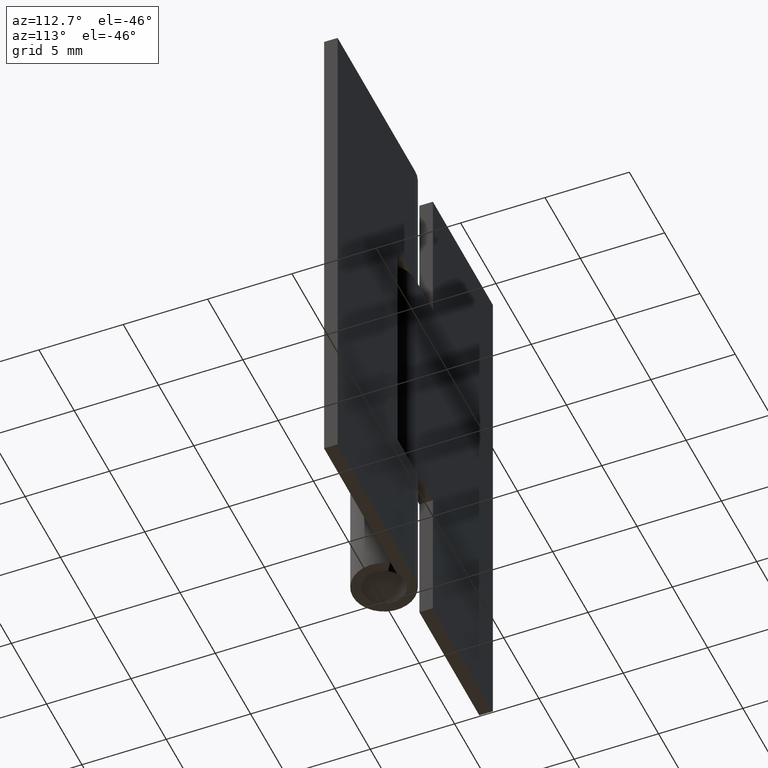
[diagram: clean part render]
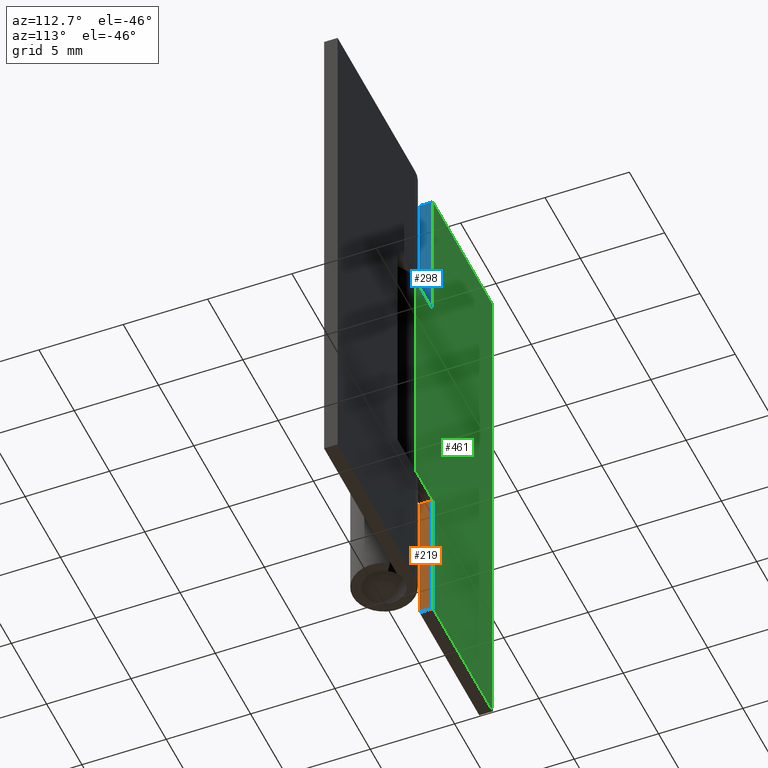
[diagram: same view with three faces highlighted in distinct colors, each labeled with its STEP entity id]
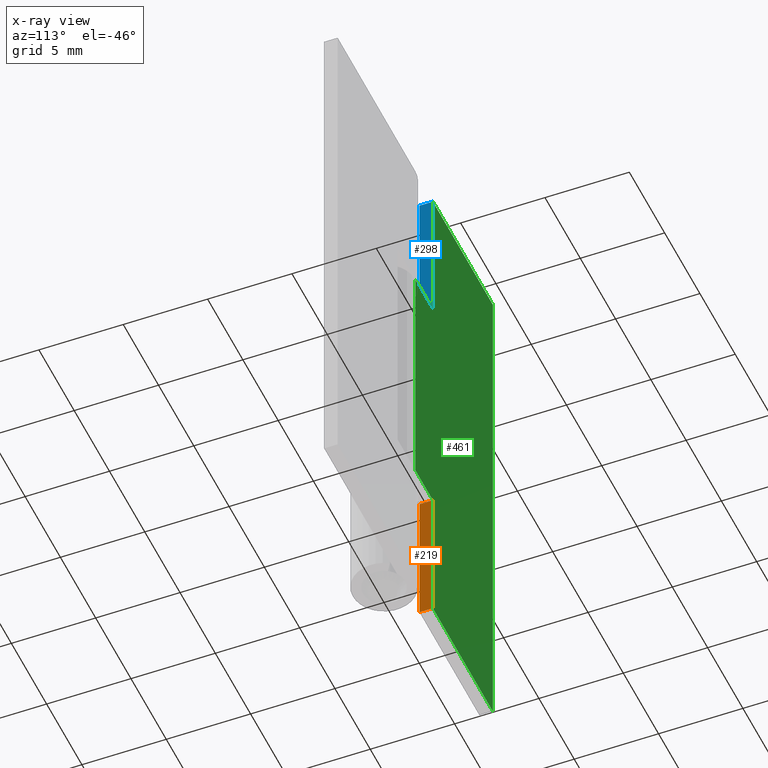
[diagram: x-ray of the same camera — body ghosted, the three highlighted faces saturated]
A machine part, auxiliary view with three faces highlighted in distinct colors.
The next image is the same camera in x-ray (body ghosted, the three faces saturated) — at least one of them is partly hidden behind the body in this view.
Their STEP definitions:

[orange] entity #219 — the highlighted face is a freeform B-spline surface patch.
#143=CARTESIAN_POINT('',(-2.500000000000000,1.049998000000000,0.0));
#144=VERTEX_POINT('',#143);
#150=CARTESIAN_POINT('',(-2.500000000000000,1.049998000000052,8.500000000000000));
#151=VERTEX_POINT('',#150);
#152=CARTESIAN_POINT('',(-2.500000000000000,1.049998000000000,0.0));
#153=CARTESIAN_POINT('',(-2.500000000000000,1.049998000000052,8.500000000000000));
#154=QUASI_UNIFORM_CURVE('',1,(#152,#153),.UNSPECIFIED.,.F.,.U.);
#155=EDGE_CURVE('',#144,#151,#154,.T.);
#192=CARTESIAN_POINT('',(-2.500000000000000,1.010038001550557,-0.424574983525351));
#193=CARTESIAN_POINT('',(-2.500000000000000,1.010038001550557,8.924575211513115));
#194=CARTESIAN_POINT('',(-2.500000000000000,1.889958019907081,-0.424574983525351));
#195=CARTESIAN_POINT('',(-2.500000000000000,1.889958019907081,8.924575211513115));
#196=B_SPLINE_SURFACE_WITH_KNOTS('',1,1,((#192,#194),(#193,#195)),.UNSPECIFIED.,.F.,.F.,.U.,(2,2),(2,2),(0.0,9.349150195038465),(0.041708334948495,0.958291687403247),.UNSPECIFIED.);
#197=CARTESIAN_POINT('',(-2.500000000000000,1.849997999999965,7.105427E-015));
#198=VERTEX_POINT('',#197);
#199=CARTESIAN_POINT('',(-2.500000000000000,1.049998000000000,0.0));
#200=CARTESIAN_POINT('',(-2.500000000000000,1.849997999999965,7.105427E-015));
#201=QUASI_UNIFORM_CURVE('',1,(#199,#200),.UNSPECIFIED.,.F.,.U.);
#202=EDGE_CURVE('',#144,#198,#201,.T.);
#203=ORIENTED_EDGE('',*,*,#202,.T.);
#204=CARTESIAN_POINT('',(-2.500000000000000,1.849997999999965,8.500000000000000));
#205=VERTEX_POINT('',#204);
#206=CARTESIAN_POINT('',(-2.500000000000000,1.849997999999965,7.105427E-015));
#207=CARTESIAN_POINT('',(-2.500000000000000,1.849997999999965,8.500000000000000));
#208=QUASI_UNIFORM_CURVE('',1,(#206,#207),.UNSPECIFIED.,.F.,.U.);
#209=EDGE_CURVE('',#198,#205,#208,.T.);
#210=ORIENTED_EDGE('',*,*,#209,.T.);
#211=CARTESIAN_POINT('',(-2.500000000000000,1.049998000000052,8.500000000000000));
#212=CARTESIAN_POINT('',(-2.500000000000000,1.849997999999965,8.500000000000000));
#213=QUASI_UNIFORM_CURVE('',1,(#211,#212),.UNSPECIFIED.,.F.,.U.);
#214=EDGE_CURVE('',#151,#205,#213,.T.);
#215=ORIENTED_EDGE('',*,*,#214,.F.);
#216=ORIENTED_EDGE('',*,*,#155,.F.);
#217=EDGE_LOOP('',(#203,#210,#215,#216));
#218=FACE_OUTER_BOUND('',#217,.T.);
#219=ADVANCED_FACE('',(#218),#196,.F.);

[blue] entity #298 — the highlighted face is a freeform B-spline surface patch.
#163=CARTESIAN_POINT('',(-2.500000000000000,1.049998000000052,23.500000000000000));
#164=VERTEX_POINT('',#163);
#170=CARTESIAN_POINT('',(-2.500000000000000,1.049998499999982,32.0));
#171=VERTEX_POINT('',#170);
#172=CARTESIAN_POINT('',(-2.500000000000000,1.049998499999982,32.0));
#173=CARTESIAN_POINT('',(-2.500000000000000,1.049998000000052,23.500000000000000));
#174=QUASI_UNIFORM_CURVE('',1,(#172,#173),.UNSPECIFIED.,.F.,.U.);
#175=EDGE_CURVE('',#171,#164,#174,.T.);
#271=CARTESIAN_POINT('',(-2.500000000000000,1.010038001550610,32.424574983525353));
#272=CARTESIAN_POINT('',(-2.500000000000000,1.010038001550610,23.075424788486881));
#273=CARTESIAN_POINT('',(-2.500000000000000,1.889958019907114,32.424574983525353));
#274=CARTESIAN_POINT('',(-2.500000000000000,1.889958019907114,23.075424788486881));
#275=B_SPLINE_SURFACE_WITH_KNOTS('',1,1,((#271,#273),(#272,#274)),.UNSPECIFIED.,.F.,.F.,.U.,(2,2),(2,2),(0.0,9.349150195038476),(0.041708334948495,0.958291687403247),.UNSPECIFIED.);
#276=ORIENTED_EDGE('',*,*,#175,.T.);
#277=CARTESIAN_POINT('',(-2.500000000000000,1.849997999999965,23.500000000000000));
#278=VERTEX_POINT('',#277);
#279=CARTESIAN_POINT('',(-2.500000000000000,1.049998000000052,23.500000000000000));
#280=CARTESIAN_POINT('',(-2.500000000000000,1.849997999999965,23.500000000000000));
#281=QUASI_UNIFORM_CURVE('',1,(#279,#280),.UNSPECIFIED.,.F.,.U.);
#282=EDGE_CURVE('',#164,#278,#281,.T.);
#283=ORIENTED_EDGE('',*,*,#282,.T.);
#284=CARTESIAN_POINT('',(-2.500000000000000,1.849998000000000,32.0));
#285=VERTEX_POINT('',#284);
#286=CARTESIAN_POINT('',(-2.500000000000000,1.849998000000000,32.0));
#287=CARTESIAN_POINT('',(-2.500000000000000,1.849997999999965,23.500000000000000));
#288=QUASI_UNIFORM_CURVE('',1,(#286,#287),.UNSPECIFIED.,.F.,.U.);
#289=EDGE_CURVE('',#285,#278,#288,.T.);
#290=ORIENTED_EDGE('',*,*,#289,.F.);
#291=CARTESIAN_POINT('',(-2.500000000000000,1.049998499999982,32.0));
#292=CARTESIAN_POINT('',(-2.500000000000000,1.849998000000000,32.0));
#293=QUASI_UNIFORM_CURVE('',1,(#291,#292),.UNSPECIFIED.,.F.,.U.);
#294=EDGE_CURVE('',#171,#285,#293,.T.);
#295=ORIENTED_EDGE('',*,*,#294,.F.);
#296=EDGE_LOOP('',(#276,#283,#290,#295));
#297=FACE_OUTER_BOUND('',#296,.T.);
#298=ADVANCED_FACE('',(#297),#275,.T.);

[green] entity #461 — the highlighted face is a freeform B-spline surface patch.
#197=CARTESIAN_POINT('',(-2.500000000000000,1.849997999999965,7.105427E-015));
#198=VERTEX_POINT('',#197);
#204=CARTESIAN_POINT('',(-2.500000000000000,1.849997999999965,8.500000000000000));
#205=VERTEX_POINT('',#204);
#206=CARTESIAN_POINT('',(-2.500000000000000,1.849997999999965,7.105427E-015));
#207=CARTESIAN_POINT('',(-2.500000000000000,1.849997999999965,8.500000000000000));
#208=QUASI_UNIFORM_CURVE('',1,(#206,#207),.UNSPECIFIED.,.F.,.U.);
#209=EDGE_CURVE('',#198,#205,#208,.T.);
#226=CARTESIAN_POINT('',(0.002720293357384,1.849998000000000,8.500000000000000));
#227=VERTEX_POINT('',#226);
#228=CARTESIAN_POINT('',(-2.500000000000000,1.849997999999965,8.500000000000000));
#229=CARTESIAN_POINT('',(0.002720293357384,1.849998000000000,8.500000000000000));
#230=QUASI_UNIFORM_CURVE('',1,(#228,#229),.UNSPECIFIED.,.F.,.U.);
#231=EDGE_CURVE('',#205,#227,#230,.T.);
#277=CARTESIAN_POINT('',(-2.500000000000000,1.849997999999965,23.500000000000000));
#278=VERTEX_POINT('',#277);
#284=CARTESIAN_POINT('',(-2.500000000000000,1.849998000000000,32.0));
#285=VERTEX_POINT('',#284);
#286=CARTESIAN_POINT('',(-2.500000000000000,1.849998000000000,32.0));
#287=CARTESIAN_POINT('',(-2.500000000000000,1.849997999999965,23.500000000000000));
#288=QUASI_UNIFORM_CURVE('',1,(#286,#287),.UNSPECIFIED.,.F.,.U.);
#289=EDGE_CURVE('',#285,#278,#288,.T.);
#307=CARTESIAN_POINT('',(0.002720293357384,1.849997999999965,23.500000000000000));
#308=VERTEX_POINT('',#307);
#344=CARTESIAN_POINT('',(-2.500000000000000,1.849997999999965,23.500000000000000));
#345=CARTESIAN_POINT('',(0.002720293357384,1.849997999999965,23.500000000000000));
#346=QUASI_UNIFORM_CURVE('',1,(#344,#345),.UNSPECIFIED.,.F.,.U.);
#347=EDGE_CURVE('',#278,#308,#346,.T.);
#360=CARTESIAN_POINT('',(-11.0,1.849998000000000,0.0));
#361=VERTEX_POINT('',#360);
#367=CARTESIAN_POINT('',(-2.500000000000000,1.849997999999965,7.105427E-015));
#368=CARTESIAN_POINT('',(-11.0,1.849998000000000,0.0));
#369=QUASI_UNIFORM_CURVE('',1,(#367,#368),.UNSPECIFIED.,.F.,.U.);
#370=EDGE_CURVE('',#198,#361,#369,.T.);
#382=CARTESIAN_POINT('',(-11.0,1.849998000000000,32.0));
#383=VERTEX_POINT('',#382);
#389=CARTESIAN_POINT('',(-11.0,1.849998000000000,32.0));
#390=CARTESIAN_POINT('',(-11.0,1.849998000000000,0.0));
#391=QUASI_UNIFORM_CURVE('',1,(#389,#390),.UNSPECIFIED.,.F.,.U.);
#392=EDGE_CURVE('',#383,#361,#391,.T.);
#403=CARTESIAN_POINT('',(-2.500000000000000,1.849998000000000,32.0));
#404=CARTESIAN_POINT('',(-11.0,1.849998000000000,32.0));
#405=QUASI_UNIFORM_CURVE('',1,(#403,#404),.UNSPECIFIED.,.F.,.U.);
#406=EDGE_CURVE('',#285,#383,#405,.T.);
#436=CARTESIAN_POINT('',(0.002720293357384,1.849997999999965,23.500000000000000));
#437=CARTESIAN_POINT('',(0.002720293357384,1.849998000000000,8.500000000000000));
#438=QUASI_UNIFORM_CURVE('',1,(#436,#437),.UNSPECIFIED.,.F.,.U.);
#439=EDGE_CURVE('',#308,#227,#438,.T.);
#446=CARTESIAN_POINT('',(-11.549585857327790,1.849998000000000,33.598399937977788));
#447=CARTESIAN_POINT('',(-11.549585857327790,1.849998000000000,-1.598400796284675));
#448=CARTESIAN_POINT('',(0.552306445801133,1.849998000000000,33.598399937977788));
#449=CARTESIAN_POINT('',(0.552306445801133,1.849998000000000,-1.598400796284675));
#450=B_SPLINE_SURFACE_WITH_KNOTS('',1,1,((#446,#448),(#447,#449)),.UNSPECIFIED.,.F.,.F.,.U.,(2,2),(2,2),(0.0,35.196800734262460),(0.0,12.101892303128929),.UNSPECIFIED.);
#451=ORIENTED_EDGE('',*,*,#231,.F.);
#452=ORIENTED_EDGE('',*,*,#209,.F.);
#453=ORIENTED_EDGE('',*,*,#370,.T.);
#454=ORIENTED_EDGE('',*,*,#392,.F.);
#455=ORIENTED_EDGE('',*,*,#406,.F.);
#456=ORIENTED_EDGE('',*,*,#289,.T.);
#457=ORIENTED_EDGE('',*,*,#347,.T.);
#458=ORIENTED_EDGE('',*,*,#439,.T.);
#459=EDGE_LOOP('',(#451,#452,#453,#454,#455,#456,#457,#458));
#460=FACE_OUTER_BOUND('',#459,.T.);
#461=ADVANCED_FACE('',(#460),#450,.F.);